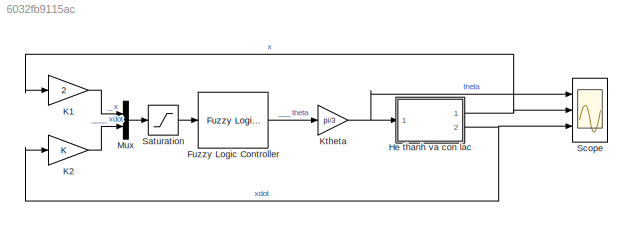
MODEL slx_6032fb9115ac
KIND model
CONFIG AbsTol = auto
CONFIG EnableMultiTasking = off
CONFIG FixedStep = 0.001
CONFIG MaxStep = auto
CONFIG MinStep = auto
CONFIG RelTol = 1e-3
CONFIG SampleTimeConstraint = Unconstrained
CONFIG Solver = ode5
CONFIG SolverName = ode5
CONFIG StartTime = 0.0
CONFIG StopTime = 4
BLOCK [Reference] Fuzzy Logic Controller  REF=fuzblock/Fuzzy Logic   (lib defined in mdl_858b3b3e7478)
Controller
  Ports = [1, 1]
  SourceBlock = fuzblock/Fuzzy Logic \nController
  SourceProductBaseCode = FL
  SourceProductName = Fuzzy Logic Toolbox
  SourceType = Fuzzy Inference System
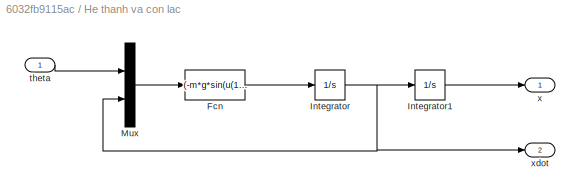
BLOCK [SubSystem] He thanh va con lac
  Ports = [1, 2]
  RequestExecContextInheritance = off
BLOCK [Fcn] He thanh va con lac/Fcn
  Expr = (-m*g*sin(u(1)) - b*u(2)) / (J/(R*R) + m)
BLOCK [Integrator] He thanh va con lac/Integrator
  InitialCondition = xdot0
  Ports = [1, 1]
BLOCK [Integrator] He thanh va con lac/Integrator1
  InitialCondition = x0
  Ports = [1, 1]
BLOCK [Mux] He thanh va con lac/Mux
  DisplayOption = bar
  Inputs = 2
  Ports = [2, 1]
BLOCK [Inport] He thanh va con lac/theta
  IconDisplay = Port number
BLOCK [Outport] He thanh va con lac/x
  IconDisplay = Port number
BLOCK [Outport] He thanh va con lac/xdot
  IconDisplay = Port number
  Port = 2
BLOCK [Gain] K1
  Gain = 2
  OutDataTypeStr = Inherit: Inherit via internal rule
  ParamDataTypeStr = Inherit: Inherit via internal rule
  SaturateOnIntegerOverflow = off
BLOCK [Gain] K2
  OutDataTypeStr = Inherit: Inherit via internal rule
  ParamDataTypeStr = Inherit: Inherit via internal rule
  SaturateOnIntegerOverflow = off
BLOCK [Gain] Ktheta
  Gain = pi/3
  OutDataTypeStr = Inherit: Inherit via internal rule
  ParamDataTypeStr = Inherit: Inherit via internal rule
  SaturateOnIntegerOverflow = off
BLOCK [Mux] Mux
  DisplayOption = bar
  Inputs = 2
  Ports = [2, 1]
BLOCK [Saturate] Saturation
  InputPortMap = u0
  LowerLimit = -1
  Ports = [1, 1]
  UpperLimit = 1
BLOCK [Scope] Scope
  Floating = off
  NumInputPorts = 3
  Ports = [3]
  ScopeSpecificationString = Simulink.scopes.TimeScopeBlockCfg('CurrentConfiguration', extmgr.ConfigurationSet(extmgr.Configuration('Core','General UI',true,'FigureColor',[1 1 1]),extmgr.Configuration('Core','Source UI',true),extmgr.Configuration('Sources','WiredSimulink',true),extmgr.Configuration('Visuals','Time Domain',true,'SerializedDisplays',{struct('MinYLimReal','-0.17524','MaxYLimReal','0.0961','YLabelReal','','MinYLi...<+3053ch>
LINE Fuzzy Logic Controller:1 -> Ktheta:1
LINE He thanh va con lac/Fcn:1 -> He thanh va con lac/Integrator:1
LINE He thanh va con lac/Integrator1:1 -> He thanh va con lac/x:1
NET He thanh va con lac/Integrator:1 -> He thanh va con lac/Integrator1:1, He thanh va con lac/Mux:2, He thanh va con lac/xdot:1
LINE He thanh va con lac/Mux:1 -> He thanh va con lac/Fcn:1
LINE He thanh va con lac/theta:1 -> He thanh va con lac/Mux:1
NET He thanh va con lac:1 -> K1:1, Scope:2
NET He thanh va con lac:2 -> K2:1, Scope:3
LINE K1:1 -> Mux:1
LINE K2:1 -> Mux:2
NET Ktheta:1 -> He thanh va con lac:1, Scope:1
LINE Mux:1 -> Saturation:1
LINE Saturation:1 -> Fuzzy Logic Controller:1
note: NET lines group one-source signal fan-out (src -> all destinations, sorted); 1:1 wires keep LINE
